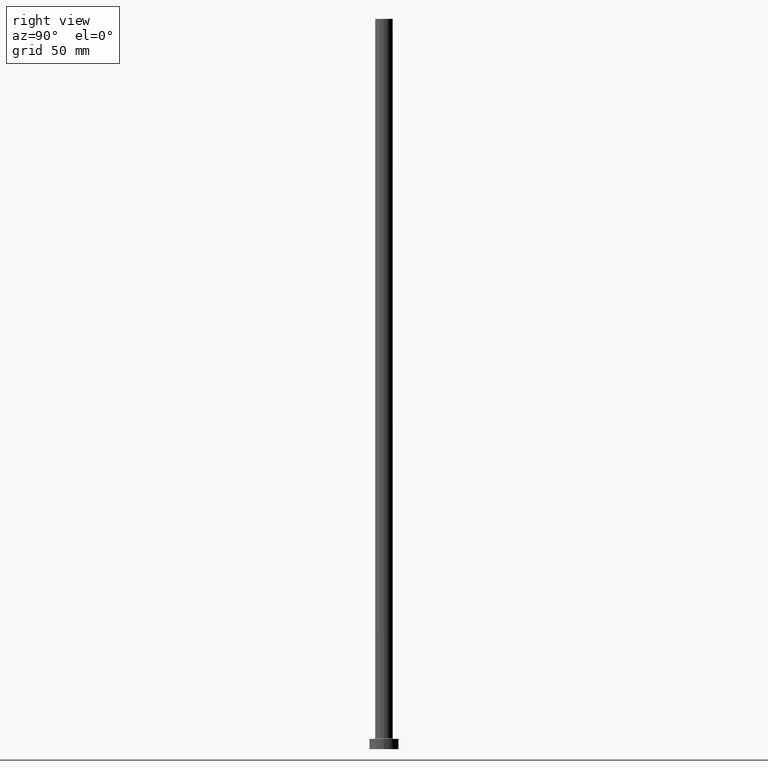
[diagram: clean part render]
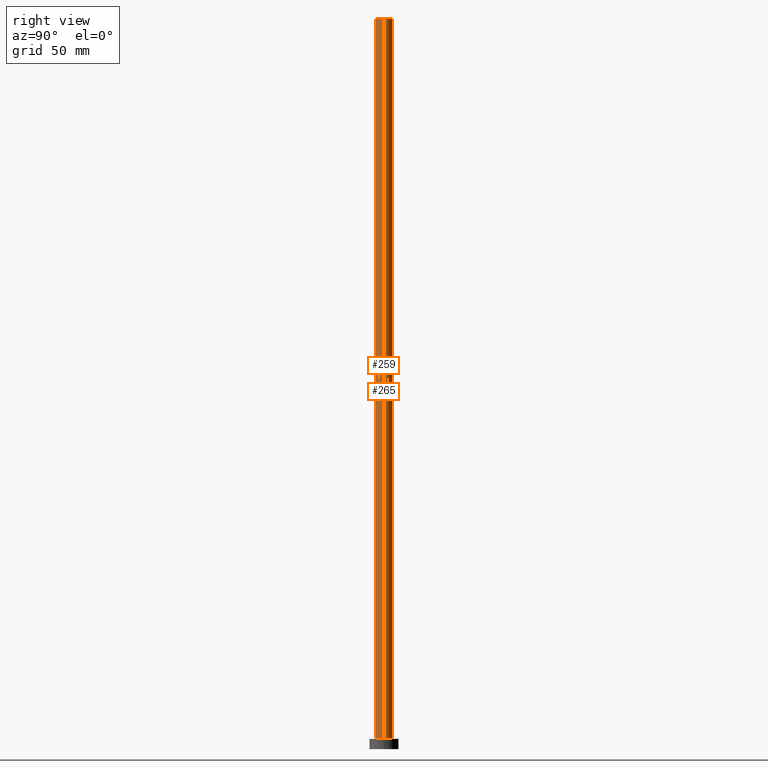
[diagram: same view with one multi-face feature highlighted, each face labeled with its STEP entity id]
A machine part, right view. The highlighted faces form ONE feature: a constant-radius fillet chain: 2 tangent blend faces with common blend radius 6 mm. The faces share edges in the B-rep.
Their STEP definitions:
[1] entity #259 (Cylinder):
#9 = DIRECTION ( 'NONE',  ( 0.000000000000000000, 0.000000000000000000, 1.000000000000000000 ) ) ;
#22 = CARTESIAN_POINT ( 'NONE',  ( 6.000000000000000888, 7.347880794884120722E-16, 7.699999999999985079 ) ) ;
#25 = CARTESIAN_POINT ( 'NONE',  ( -6.000000000000000888, 0.000000000000000000, 7.699999999999985079 ) ) ;
#38 = CARTESIAN_POINT ( 'NONE',  ( 0.000000000000000000, 0.000000000000000000, 500.0000000000000000 ) ) ;
#42 = CARTESIAN_POINT ( 'NONE',  ( 0.000000000000000000, 0.000000000000000000, 500.0000000000000000 ) ) ;
#52 = DIRECTION ( 'NONE',  ( -0.000000000000000000, -0.000000000000000000, -1.000000000000000000 ) ) ;
#69 = DIRECTION ( 'NONE',  ( 1.000000000000000000, 0.000000000000000000, 0.000000000000000000 ) ) ;
#72 = DIRECTION ( 'NONE',  ( -1.000000000000000000, 0.000000000000000000, 0.000000000000000000 ) ) ;
#78 = EDGE_CURVE ( 'NONE', #401, #173, #89, .T. ) ;
#85 = DIRECTION ( 'NONE',  ( 1.000000000000000000, 0.000000000000000000, 0.000000000000000000 ) ) ;
#89 = CIRCLE ( 'NONE', #282, 6.000000000000000888 ) ;
#127 = CIRCLE ( 'NONE', #304, 6.000000000000000888 ) ;
#141 = VERTEX_POINT ( 'NONE', #22 ) ;
#147 = EDGE_CURVE ( 'NONE', #173, #141, #198, .T. ) ;
#151 = AXIS2_PLACEMENT_3D ( 'NONE', #38, #175, #72 ) ;
#168 = CARTESIAN_POINT ( 'NONE',  ( 0.000000000000000000, 0.000000000000000000, 7.699999999999985079 ) ) ;
#173 = VERTEX_POINT ( 'NONE', #200 ) ;
#175 = DIRECTION ( 'NONE',  ( -0.000000000000000000, -0.000000000000000000, -1.000000000000000000 ) ) ;
#188 = ORIENTED_EDGE ( 'NONE', *, *, #340, .T. ) ;
#190 = EDGE_LOOP ( 'NONE', ( #438, #312, #347, #188 ) ) ;
#198 = LINE ( 'NONE', #298, #358 ) ;
#200 = CARTESIAN_POINT ( 'NONE',  ( 6.000000000000000888, 7.347880794884120722E-16, 500.0000000000000000 ) ) ;
#205 = FACE_OUTER_BOUND ( 'NONE', #190, .T. ) ;
#211 = EDGE_CURVE ( 'NONE', #401, #227, #235, .T. ) ;
#227 = VERTEX_POINT ( 'NONE', #25 ) ;
#235 = LINE ( 'NONE', #373, #432 ) ;
#259 = ADVANCED_FACE ( 'NONE', ( #205 ), #458, .T. ) ;
#282 = AXIS2_PLACEMENT_3D ( 'NONE', #42, #9, #85 ) ;
#298 = CARTESIAN_POINT ( 'NONE',  ( 6.000000000000000888, 7.347880794884120722E-16, 500.0000000000000000 ) ) ;
#304 = AXIS2_PLACEMENT_3D ( 'NONE', #168, #355, #69 ) ;
#312 = ORIENTED_EDGE ( 'NONE', *, *, #78, .F. ) ;
#340 = EDGE_CURVE ( 'NONE', #227, #141, #127, .T. ) ;
#347 = ORIENTED_EDGE ( 'NONE', *, *, #211, .T. ) ;
#355 = DIRECTION ( 'NONE',  ( 0.000000000000000000, 0.000000000000000000, 1.000000000000000000 ) ) ;
#358 = VECTOR ( 'NONE', #413, 1000.000000000000000 ) ;
#373 = CARTESIAN_POINT ( 'NONE',  ( -6.000000000000000888, 0.000000000000000000, 500.0000000000000000 ) ) ;
#401 = VERTEX_POINT ( 'NONE', #437 ) ;
#413 = DIRECTION ( 'NONE',  ( -0.000000000000000000, -0.000000000000000000, -1.000000000000000000 ) ) ;
#432 = VECTOR ( 'NONE', #52, 1000.000000000000000 ) ;
#437 = CARTESIAN_POINT ( 'NONE',  ( -6.000000000000000888, 0.000000000000000000, 500.0000000000000000 ) ) ;
#438 = ORIENTED_EDGE ( 'NONE', *, *, #147, .F. ) ;
#458 = CYLINDRICAL_SURFACE ( 'NONE', #151, 6.000000000000000888 ) ;
[2] entity #265 (Cylinder):
#22 = CARTESIAN_POINT ( 'NONE',  ( 6.000000000000000888, 7.347880794884120722E-16, 7.699999999999985079 ) ) ;
#25 = CARTESIAN_POINT ( 'NONE',  ( -6.000000000000000888, 0.000000000000000000, 7.699999999999985079 ) ) ;
#52 = DIRECTION ( 'NONE',  ( -0.000000000000000000, -0.000000000000000000, -1.000000000000000000 ) ) ;
#61 = EDGE_LOOP ( 'NONE', ( #174, #216, #409, #83 ) ) ;
#68 = EDGE_CURVE ( 'NONE', #141, #227, #97, .T. ) ;
#83 = ORIENTED_EDGE ( 'NONE', *, *, #211, .F. ) ;
#97 = CIRCLE ( 'NONE', #446, 6.000000000000000888 ) ;
#109 = DIRECTION ( 'NONE',  ( -0.000000000000000000, -0.000000000000000000, -1.000000000000000000 ) ) ;
#141 = VERTEX_POINT ( 'NONE', #22 ) ;
#144 = CYLINDRICAL_SURFACE ( 'NONE', #236, 6.000000000000000888 ) ;
#147 = EDGE_CURVE ( 'NONE', #173, #141, #198, .T. ) ;
#173 = VERTEX_POINT ( 'NONE', #200 ) ;
#174 = ORIENTED_EDGE ( 'NONE', *, *, #420, .F. ) ;
#198 = LINE ( 'NONE', #298, #358 ) ;
#200 = CARTESIAN_POINT ( 'NONE',  ( 6.000000000000000888, 7.347880794884120722E-16, 500.0000000000000000 ) ) ;
#211 = EDGE_CURVE ( 'NONE', #401, #227, #235, .T. ) ;
#216 = ORIENTED_EDGE ( 'NONE', *, *, #147, .T. ) ;
#227 = VERTEX_POINT ( 'NONE', #25 ) ;
#235 = LINE ( 'NONE', #373, #432 ) ;
#236 = AXIS2_PLACEMENT_3D ( 'NONE', #314, #109, #352 ) ;
#255 = DIRECTION ( 'NONE',  ( 0.000000000000000000, 0.000000000000000000, 1.000000000000000000 ) ) ;
#263 = DIRECTION ( 'NONE',  ( 1.000000000000000000, 0.000000000000000000, 0.000000000000000000 ) ) ;
#265 = ADVANCED_FACE ( 'NONE', ( #348 ), #144, .T. ) ;
#290 = DIRECTION ( 'NONE',  ( 0.000000000000000000, 0.000000000000000000, 1.000000000000000000 ) ) ;
#298 = CARTESIAN_POINT ( 'NONE',  ( 6.000000000000000888, 7.347880794884120722E-16, 500.0000000000000000 ) ) ;
#314 = CARTESIAN_POINT ( 'NONE',  ( 0.000000000000000000, 0.000000000000000000, 500.0000000000000000 ) ) ;
#348 = FACE_OUTER_BOUND ( 'NONE', #61, .T. ) ;
#352 = DIRECTION ( 'NONE',  ( -1.000000000000000000, 0.000000000000000000, 0.000000000000000000 ) ) ;
#358 = VECTOR ( 'NONE', #413, 1000.000000000000000 ) ;
#364 = CARTESIAN_POINT ( 'NONE',  ( 0.000000000000000000, 0.000000000000000000, 7.699999999999985079 ) ) ;
#365 = DIRECTION ( 'NONE',  ( 1.000000000000000000, 0.000000000000000000, 0.000000000000000000 ) ) ;
#373 = CARTESIAN_POINT ( 'NONE',  ( -6.000000000000000888, 0.000000000000000000, 500.0000000000000000 ) ) ;
#392 = CARTESIAN_POINT ( 'NONE',  ( 0.000000000000000000, 0.000000000000000000, 500.0000000000000000 ) ) ;
#401 = VERTEX_POINT ( 'NONE', #437 ) ;
#409 = ORIENTED_EDGE ( 'NONE', *, *, #68, .T. ) ;
#413 = DIRECTION ( 'NONE',  ( -0.000000000000000000, -0.000000000000000000, -1.000000000000000000 ) ) ;
#420 = EDGE_CURVE ( 'NONE', #173, #401, #423, .T. ) ;
#423 = CIRCLE ( 'NONE', #433, 6.000000000000000888 ) ;
#432 = VECTOR ( 'NONE', #52, 1000.000000000000000 ) ;
#433 = AXIS2_PLACEMENT_3D ( 'NONE', #392, #290, #365 ) ;
#437 = CARTESIAN_POINT ( 'NONE',  ( -6.000000000000000888, 0.000000000000000000, 500.0000000000000000 ) ) ;
#446 = AXIS2_PLACEMENT_3D ( 'NONE', #364, #255, #263 ) ;